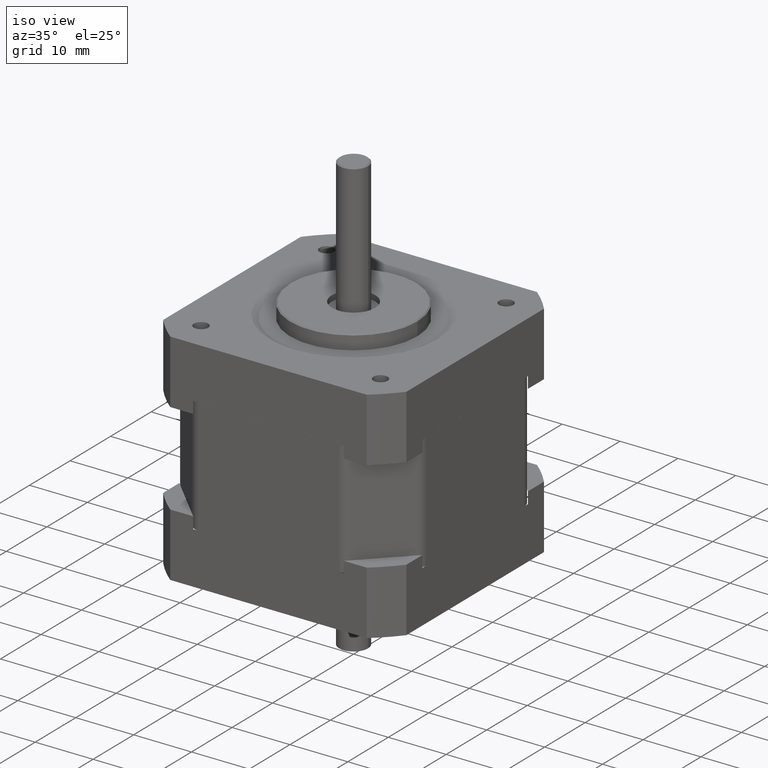
[diagram: clean part render]
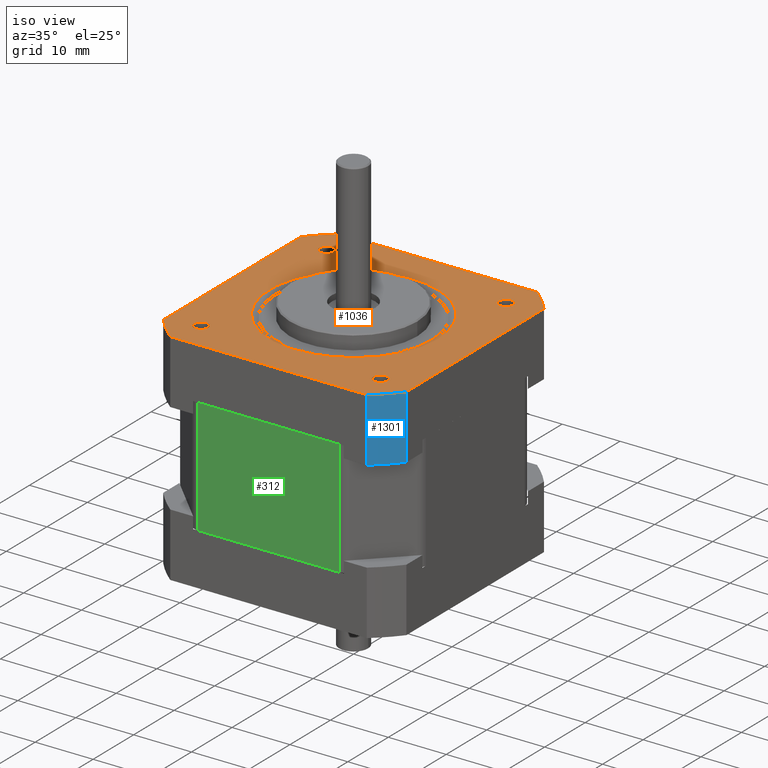
[diagram: same view with three faces highlighted in distinct colors, each labeled with its STEP entity id]
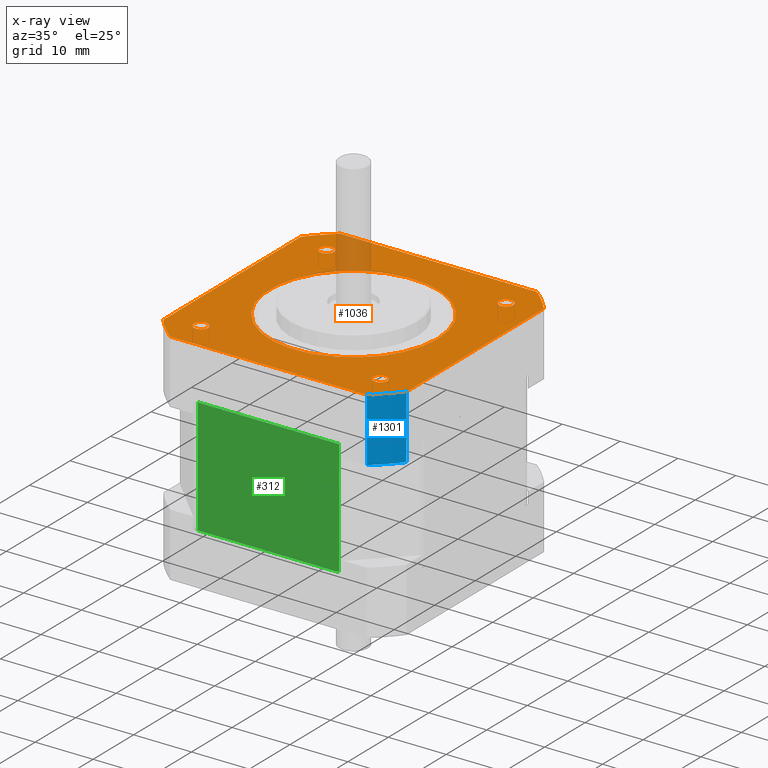
[diagram: x-ray of the same camera — body ghosted, the three highlighted faces saturated]
A machine part, iso view with three faces highlighted in distinct colors.
The next image is the same camera in x-ray (body ghosted, the three faces saturated) — at least one of them is partly hidden behind the body in this view.
Their STEP definitions:

[orange] entity #1036 — the highlighted planar face has unit normal (0, 0, 1).
#671=CARTESIAN_POINT('',(21.000000000000011,16.970562748477139,24.250000000000007));
#672=VERTEX_POINT('',#671);
#679=CARTESIAN_POINT('',(21.0,-16.970562748477139,24.250000000000007));
#680=VERTEX_POINT('',#679);
#681=CARTESIAN_POINT('',(21.000000000000011,16.970562748477139,24.250000000000007));
#682=DIRECTION('',(0.0,-1.0,0.0));
#683=VECTOR('',#682,33.941125496954278);
#684=LINE('',#681,#683);
#685=EDGE_CURVE('',#672,#680,#684,.T.);
#878=CARTESIAN_POINT('',(-16.970562748477146,21.0,24.250000000000007));
#879=VERTEX_POINT('',#878);
#886=CARTESIAN_POINT('',(16.970562748477139,21.000000000000011,24.250000000000007));
#887=VERTEX_POINT('',#886);
#888=CARTESIAN_POINT('',(-16.970562748477146,21.0,24.250000000000007));
#889=DIRECTION('',(1.0,0.0,0.0));
#890=VECTOR('',#889,33.941125496954285);
#891=LINE('',#888,#890);
#892=EDGE_CURVE('',#879,#887,#891,.T.);
#920=CARTESIAN_POINT('',(14.500000000000007,1.775679E-015,24.250000000000007));
#921=VERTEX_POINT('',#920);
#922=CARTESIAN_POINT('',(-1.403331E-048,-2.692370E-032,24.250000000000007));
#923=DIRECTION('',(0.0,0.0,1.0));
#924=DIRECTION('',(-1.0,0.0,0.0));
#925=AXIS2_PLACEMENT_3D('',#922,#923,#924);
#926=CIRCLE('',#925,14.500000000000007);
#927=EDGE_CURVE('',#921,#921,#926,.T.);
#932=CARTESIAN_POINT('',(4.006830E-016,3.330669E-015,24.250000000000007));
#933=DIRECTION('',(0.0,0.0,1.0));
#934=DIRECTION('',(1.0,0.0,0.0));
#935=AXIS2_PLACEMENT_3D('',#932,#933,#934);
#936=PLANE('',#935);
#937=ORIENTED_EDGE('',*,*,#892,.F.);
#938=CARTESIAN_POINT('',(-21.000000000000011,16.970562748477139,24.250000000000007));
#939=VERTEX_POINT('',#938);
#940=CARTESIAN_POINT('',(-1.403331E-048,-2.692370E-032,24.250000000000007));
#941=DIRECTION('',(-1.253526E-033,1.551160E-033,-1.0));
#942=DIRECTION('',(-0.628539361054709,0.777777777777778,1.994348E-033));
#943=AXIS2_PLACEMENT_3D('',#940,#941,#942);
#944=CIRCLE('',#943,27.0);
#945=EDGE_CURVE('',#939,#879,#944,.T.);
#946=ORIENTED_EDGE('',*,*,#945,.F.);
#947=CARTESIAN_POINT('',(-21.000000000000011,-16.970562748477136,24.250000000000007));
#948=VERTEX_POINT('',#947);
#949=CARTESIAN_POINT('',(-21.000000000000011,-16.970562748477136,24.250000000000007));
#950=DIRECTION('',(0.0,1.0,0.0));
#951=VECTOR('',#950,33.941125496954278);
#952=LINE('',#949,#951);
#953=EDGE_CURVE('',#948,#939,#952,.T.);
#954=ORIENTED_EDGE('',*,*,#953,.F.);
#955=CARTESIAN_POINT('',(-16.970562748477139,-21.0,24.250000000000007));
#956=VERTEX_POINT('',#955);
#957=CARTESIAN_POINT('',(-1.403331E-048,-2.692370E-032,24.250000000000007));
#958=DIRECTION('',(1.253526E-033,1.013002E-033,-1.0));
#959=DIRECTION('',(-0.777777777777778,-0.628539361054709,-1.611677E-033));
#960=AXIS2_PLACEMENT_3D('',#957,#958,#959);
#961=CIRCLE('',#960,27.000000000000014);
#962=EDGE_CURVE('',#956,#948,#961,.T.);
#963=ORIENTED_EDGE('',*,*,#962,.F.);
#964=CARTESIAN_POINT('',(16.970562748477146,-20.999999999999993,24.250000000000007));
#965=VERTEX_POINT('',#964);
#966=CARTESIAN_POINT('',(16.970562748477146,-20.999999999999993,24.250000000000007));
#967=DIRECTION('',(-1.0,0.0,0.0));
#968=VECTOR('',#967,33.941125496954285);
#969=LINE('',#966,#968);
#970=EDGE_CURVE('',#965,#956,#969,.T.);
#971=ORIENTED_EDGE('',*,*,#970,.F.);
#972=CARTESIAN_POINT('',(-1.403331E-048,-2.692370E-032,24.250000000000007));
#973=DIRECTION('',(-1.253526E-033,1.551160E-033,-1.0));
#974=DIRECTION('',(0.628539361054709,-0.777777777777778,-1.994348E-033));
#975=AXIS2_PLACEMENT_3D('',#972,#973,#974);
#976=CIRCLE('',#975,27.0);
#977=EDGE_CURVE('',#680,#965,#976,.T.);
#978=ORIENTED_EDGE('',*,*,#977,.F.);
#979=ORIENTED_EDGE('',*,*,#685,.F.);
#980=CARTESIAN_POINT('',(-1.403331E-048,-2.692370E-032,24.250000000000007));
#981=DIRECTION('',(1.253526E-033,1.013002E-033,-1.0));
#982=DIRECTION('',(0.777777777777778,0.628539361054709,1.611677E-033));
#983=AXIS2_PLACEMENT_3D('',#980,#981,#982);
#984=CIRCLE('',#983,27.000000000000014);
#985=EDGE_CURVE('',#887,#672,#984,.T.);
#986=ORIENTED_EDGE('',*,*,#985,.F.);
#987=EDGE_LOOP('',(#937,#946,#954,#963,#971,#978,#979,#986));
#988=FACE_OUTER_BOUND('',#987,.T.);
#989=CARTESIAN_POINT('',(14.270500000000009,15.500000000000007,24.250000000000007));
#990=VERTEX_POINT('',#989);
#991=CARTESIAN_POINT('',(15.500000000000007,15.500000000000007,24.250000000000007));
#992=DIRECTION('',(0.0,0.0,-1.0));
#993=DIRECTION('',(1.0,0.0,0.0));
#994=AXIS2_PLACEMENT_3D('',#991,#992,#993);
#995=CIRCLE('',#994,1.229500000000000);
#996=EDGE_CURVE('',#990,#990,#995,.T.);
#997=ORIENTED_EDGE('',*,*,#996,.T.);
#998=EDGE_LOOP('',(#997));
#999=FACE_BOUND('',#998,.T.);
#1000=CARTESIAN_POINT('',(-16.729499999999994,15.499999999999996,24.250000000000007));
#1001=VERTEX_POINT('',#1000);
#1002=CARTESIAN_POINT('',(-15.499999999999996,15.499999999999996,24.250000000000007));
#1003=DIRECTION('',(0.0,0.0,-1.0));
#1004=DIRECTION('',(1.0,0.0,0.0));
#1005=AXIS2_PLACEMENT_3D('',#1002,#1003,#1004);
#1006=CIRCLE('',#1005,1.229500000000000);
#1007=EDGE_CURVE('',#1001,#1001,#1006,.T.);
#1008=ORIENTED_EDGE('',*,*,#1007,.T.);
#1009=EDGE_LOOP('',(#1008));
#1010=FACE_BOUND('',#1009,.T.);
#1011=CARTESIAN_POINT('',(14.270500000000009,-15.499999999999996,24.250000000000007));
#1012=VERTEX_POINT('',#1011);
#1013=CARTESIAN_POINT('',(15.500000000000007,-15.499999999999996,24.250000000000007));
#1014=DIRECTION('',(0.0,0.0,-1.0));
#1015=DIRECTION('',(1.0,0.0,0.0));
#1016=AXIS2_PLACEMENT_3D('',#1013,#1014,#1015);
#1017=CIRCLE('',#1016,1.229500000000000);
#1018=EDGE_CURVE('',#1012,#1012,#1017,.T.);
#1019=ORIENTED_EDGE('',*,*,#1018,.T.);
#1020=EDGE_LOOP('',(#1019));
#1021=FACE_BOUND('',#1020,.T.);
#1022=CARTESIAN_POINT('',(-16.729500000000002,-15.500000000000007,24.250000000000007));
#1023=VERTEX_POINT('',#1022);
#1024=CARTESIAN_POINT('',(-15.500000000000000,-15.500000000000007,24.250000000000007));
#1025=DIRECTION('',(0.0,0.0,-1.0));
#1026=DIRECTION('',(1.0,0.0,0.0));
#1027=AXIS2_PLACEMENT_3D('',#1024,#1025,#1026);
#1028=CIRCLE('',#1027,1.229500000000000);
#1029=EDGE_CURVE('',#1023,#1023,#1028,.T.);
#1030=ORIENTED_EDGE('',*,*,#1029,.T.);
#1031=EDGE_LOOP('',(#1030));
#1032=FACE_BOUND('',#1031,.T.);
#1033=ORIENTED_EDGE('',*,*,#927,.F.);
#1034=EDGE_LOOP('',(#1033));
#1035=FACE_BOUND('',#1034,.T.);
#1036=ADVANCED_FACE('',(#988,#999,#1010,#1021,#1032,#1035),#936,.T.);

[blue] entity #1301 — the highlighted cylindrical surface (partial cylindrical patch) has radius 27 mm, axis along (-0, -0, 1).
#679=CARTESIAN_POINT('',(21.0,-16.970562748477139,24.250000000000007));
#680=VERTEX_POINT('',#679);
#687=CARTESIAN_POINT('',(21.0,-16.970562748477139,13.250000000000009));
#688=VERTEX_POINT('',#687);
#689=CARTESIAN_POINT('',(21.0,-16.970562748477139,13.250000000000009));
#690=DIRECTION('',(0.0,0.0,1.0));
#691=VECTOR('',#690,10.999999999999998);
#692=LINE('',#689,#691);
#693=EDGE_CURVE('',#688,#680,#692,.T.);
#832=CARTESIAN_POINT('',(16.970562748477146,-20.999999999999993,13.250000000000009));
#833=VERTEX_POINT('',#832);
#834=CARTESIAN_POINT('',(-1.403331E-048,1.282081E-033,13.250000000000009));
#835=DIRECTION('',(1.253526E-033,-1.551160E-033,1.0));
#836=DIRECTION('',(0.628539361054709,-0.777777777777778,-1.994348E-033));
#837=AXIS2_PLACEMENT_3D('',#834,#835,#836);
#838=CIRCLE('',#837,27.0);
#839=EDGE_CURVE('',#833,#688,#838,.T.);
#964=CARTESIAN_POINT('',(16.970562748477146,-20.999999999999993,24.250000000000007));
#965=VERTEX_POINT('',#964);
#972=CARTESIAN_POINT('',(-1.403331E-048,-2.692370E-032,24.250000000000007));
#973=DIRECTION('',(-1.253526E-033,1.551160E-033,-1.0));
#974=DIRECTION('',(0.628539361054709,-0.777777777777778,-1.994348E-033));
#975=AXIS2_PLACEMENT_3D('',#972,#973,#974);
#976=CIRCLE('',#975,27.0);
#977=EDGE_CURVE('',#680,#965,#976,.T.);
#1285=CARTESIAN_POINT('',(-1.403331E-048,1.282081E-033,13.250000000000009));
#1286=DIRECTION('',(-1.845360E-113,-2.564162E-033,1.0));
#1287=DIRECTION('',(0.628539361054709,-0.777777777777778,-1.994348E-033));
#1288=AXIS2_PLACEMENT_3D('',#1285,#1286,#1287);
#1289=CYLINDRICAL_SURFACE('',#1288,27.0);
#1290=ORIENTED_EDGE('',*,*,#977,.T.);
#1291=CARTESIAN_POINT('',(16.970562748477146,-20.999999999999993,13.250000000000009));
#1292=DIRECTION('',(0.0,0.0,1.0));
#1293=VECTOR('',#1292,10.999999999999998);
#1294=LINE('',#1291,#1293);
#1295=EDGE_CURVE('',#833,#965,#1294,.T.);
#1296=ORIENTED_EDGE('',*,*,#1295,.F.);
#1297=ORIENTED_EDGE('',*,*,#839,.T.);
#1298=ORIENTED_EDGE('',*,*,#693,.T.);
#1299=EDGE_LOOP('',(#1290,#1296,#1297,#1298));
#1300=FACE_OUTER_BOUND('',#1299,.T.);
#1301=ADVANCED_FACE('',(#1300),#1289,.T.);

[green] entity #312 — the highlighted planar face has unit normal (0, -1, 0).
#254=CARTESIAN_POINT('',(-12.171572875253791,-21.000000000000014,15.250000000000007));
#255=VERTEX_POINT('',#254);
#264=CARTESIAN_POINT('',(-12.171572875253791,-21.000000000000014,-4.749999999999992));
#265=VERTEX_POINT('',#264);
#273=CARTESIAN_POINT('',(-12.171572875253791,-21.000000000000014,-4.749999999999992));
#274=DIRECTION('',(0.0,0.0,1.0));
#275=VECTOR('',#274,20.0);
#276=LINE('',#273,#275);
#277=EDGE_CURVE('',#265,#255,#276,.T.);
#282=CARTESIAN_POINT('',(13.000000000000027,-20.999999999999986,5.250000000000008));
#283=DIRECTION('',(0.0,-1.0,0.0));
#284=DIRECTION('',(0.0,0.0,-1.0));
#285=AXIS2_PLACEMENT_3D('',#282,#283,#284);
#286=PLANE('',#285);
#287=ORIENTED_EDGE('',*,*,#277,.F.);
#288=CARTESIAN_POINT('',(12.171572875253837,-20.999999999999986,-4.749999999999992));
#289=VERTEX_POINT('',#288);
#290=CARTESIAN_POINT('',(-12.171572875253792,-21.000000000000014,-4.749999999999992));
#291=DIRECTION('',(1.0,0.0,0.0));
#292=VECTOR('',#291,24.343145750507631);
#293=LINE('',#290,#292);
#294=EDGE_CURVE('',#265,#289,#293,.T.);
#295=ORIENTED_EDGE('',*,*,#294,.T.);
#296=CARTESIAN_POINT('',(12.171572875253837,-20.999999999999986,15.250000000000007));
#297=VERTEX_POINT('',#296);
#298=CARTESIAN_POINT('',(12.171572875253835,-20.999999999999986,15.250000000000007));
#299=DIRECTION('',(0.0,0.0,-1.0));
#300=VECTOR('',#299,20.0);
#301=LINE('',#298,#300);
#302=EDGE_CURVE('',#297,#289,#301,.T.);
#303=ORIENTED_EDGE('',*,*,#302,.F.);
#304=CARTESIAN_POINT('',(12.171572875253837,-20.999999999999989,15.250000000000007));
#305=DIRECTION('',(-1.0,0.0,0.0));
#306=VECTOR('',#305,24.343145750507631);
#307=LINE('',#304,#306);
#308=EDGE_CURVE('',#297,#255,#307,.T.);
#309=ORIENTED_EDGE('',*,*,#308,.T.);
#310=EDGE_LOOP('',(#287,#295,#303,#309));
#311=FACE_OUTER_BOUND('',#310,.T.);
#312=ADVANCED_FACE('',(#311),#286,.T.);